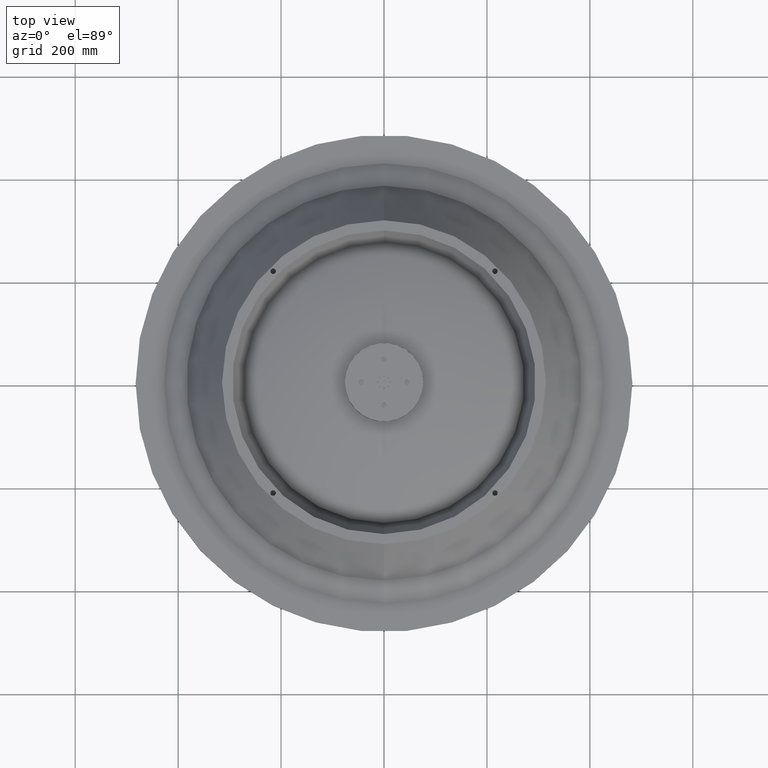
[diagram: clean part render]
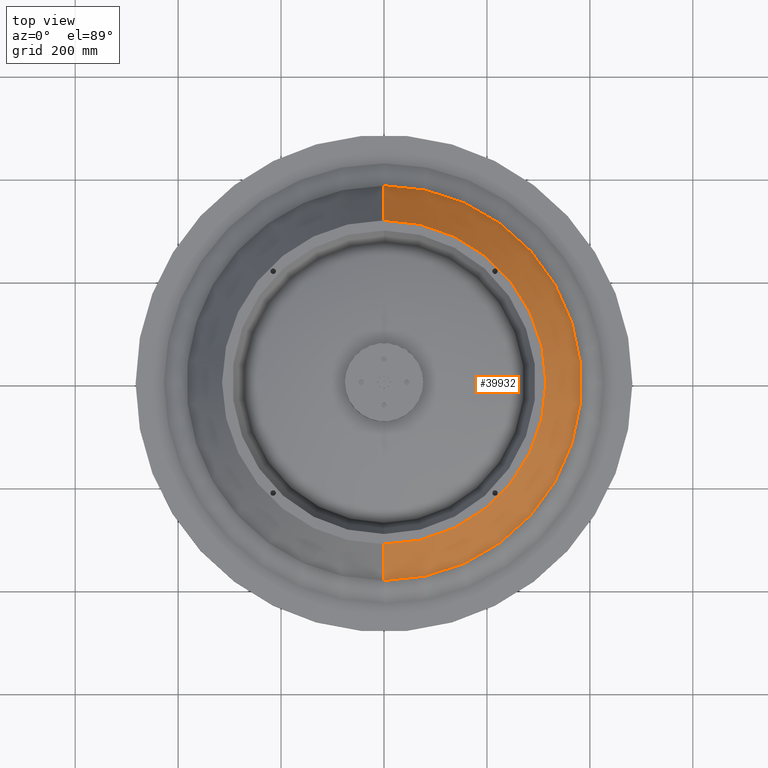
[diagram: same view with one face highlighted and labeled with its STEP entity id]
A machine part, top view. The second image highlights one B-rep face of the part: STEP entity #39932.
In plain terms, the highlighted conical surface has half-angle 35.813 deg.
Its self-contained STEP definition (entity closure, byte-faithful):
#1388 = AXIS2_PLACEMENT_3D ( 'NONE', #33995, #19313, #9134 ) ;
#1498 = DIRECTION ( 'NONE',  ( 0.0000000000000000000, 0.5851397669374044400, -0.8109324590546613800 ) ) ;
#3179 = CONICAL_SURFACE ( 'NONE', #1388, 12.38749999999999900, 0.6250524004103521500 ) ;
#4290 = EDGE_CURVE ( 'NONE', #5036, #12188, #18213, .T. ) ;
#5036 = VERTEX_POINT ( 'NONE', #29762 ) ;
#8243 = EDGE_CURVE ( 'NONE', #12188, #26525, #44330, .T. ) ;
#9134 = DIRECTION ( 'NONE',  ( 0.0000000000000000000, 1.000000000000000000, 1.212929482555273200E-016 ) ) ;
#12188 = VERTEX_POINT ( 'NONE', #18515 ) ;
#15434 = CIRCLE ( 'NONE', #39945, 15.09999999999999400 ) ;
#18127 = LINE ( 'NONE', #41065, #20389 ) ;
#18213 = CIRCLE ( 'NONE', #19131, 12.38749999999999900 ) ;
#18515 = CARTESIAN_POINT ( 'NONE',  ( 1.683123944578143300E-015, -12.38749999999999900, 0.4999999999999984500 ) ) ;
#18719 = CARTESIAN_POINT ( 'NONE',  ( 0.0000000000000000000, 3.991362324828891200E-016, -3.259194673605346100 ) ) ;
#19131 = AXIS2_PLACEMENT_3D ( 'NONE', #39809, #29207, #33082 ) ;
#19240 = EDGE_LOOP ( 'NONE', ( #20094, #31062, #43733, #34513 ) ) ;
#19313 = DIRECTION ( 'NONE',  ( -0.0000000000000000000, 1.224646799147353700E-016, -1.000000000000000000 ) ) ;
#20094 = ORIENTED_EDGE ( 'NONE', *, *, #4290, .T. ) ;
#20389 = VECTOR ( 'NONE', #1498, 39.37007874015748900 ) ;
#23348 = EDGE_CURVE ( 'NONE', #45077, #26525, #15434, .T. ) ;
#24222 = VECTOR ( 'NONE', #30995, 39.37007874015748100 ) ;
#24302 = CARTESIAN_POINT ( 'NONE',  ( 1.517031222443783900E-015, -12.38749999999999900, 0.4999999999999984500 ) ) ;
#24966 = CARTESIAN_POINT ( 'NONE',  ( 0.0000000000000000000, 15.09999999999999400, -3.259194673605343900 ) ) ;
#26525 = VERTEX_POINT ( 'NONE', #34079 ) ;
#29207 = DIRECTION ( 'NONE',  ( -0.0000000000000000000, 1.224646799147353700E-016, -1.000000000000000000 ) ) ;
#29709 = DIRECTION ( 'NONE',  ( -0.0000000000000000000, 1.224646799147353700E-016, -1.000000000000000000 ) ) ;
#29762 = CARTESIAN_POINT ( 'NONE',  ( 0.0000000000000000000, 12.38749999999999900, 0.5000000000000014400 ) ) ;
#30995 = DIRECTION ( 'NONE',  ( 7.165895426337204600E-017, -0.5851397669374042200, -0.8109324590546614900 ) ) ;
#31062 = ORIENTED_EDGE ( 'NONE', *, *, #8243, .T. ) ;
#33082 = DIRECTION ( 'NONE',  ( 0.0000000000000000000, 1.000000000000000000, 1.212929482555273200E-016 ) ) ;
#33995 = CARTESIAN_POINT ( 'NONE',  ( 0.0000000000000000000, -6.123233995736767300E-017, 0.4999999999999999400 ) ) ;
#34079 = CARTESIAN_POINT ( 'NONE',  ( 1.849216666712502600E-015, -15.09999999999999400, -3.259194673605348300 ) ) ;
#34513 = ORIENTED_EDGE ( 'NONE', *, *, #43010, .F. ) ;
#39809 = CARTESIAN_POINT ( 'NONE',  ( 0.0000000000000000000, -6.123233995736767300E-017, 0.4999999999999999400 ) ) ;
#39932 = ADVANCED_FACE ( 'NONE', ( #41258 ), #3179, .T. ) ;
#39945 = AXIS2_PLACEMENT_3D ( 'NONE', #18719, #29709, #43606 ) ;
#41065 = CARTESIAN_POINT ( 'NONE',  ( 0.0000000000000000000, 12.38749999999999900, 0.5000000000000014400 ) ) ;
#41258 = FACE_OUTER_BOUND ( 'NONE', #19240, .T. ) ;
#43010 = EDGE_CURVE ( 'NONE', #5036, #45077, #18127, .T. ) ;
#43606 = DIRECTION ( 'NONE',  ( 0.0000000000000000000, 1.000000000000000000, 1.085502514038780400E-016 ) ) ;
#43733 = ORIENTED_EDGE ( 'NONE', *, *, #23348, .F. ) ;
#44330 = LINE ( 'NONE', #24302, #24222 ) ;
#45077 = VERTEX_POINT ( 'NONE', #24966 ) ;